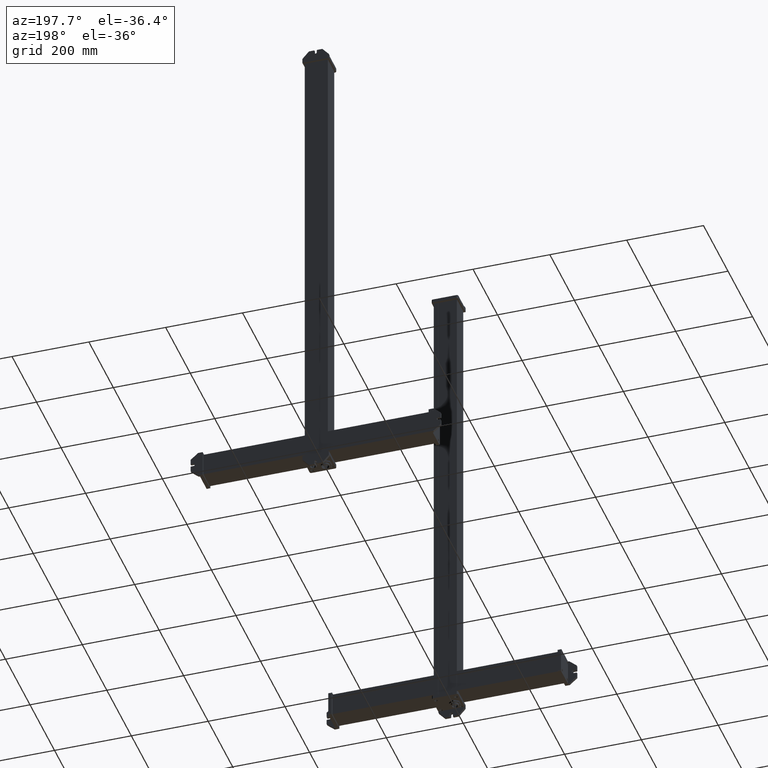
[diagram: clean part render]
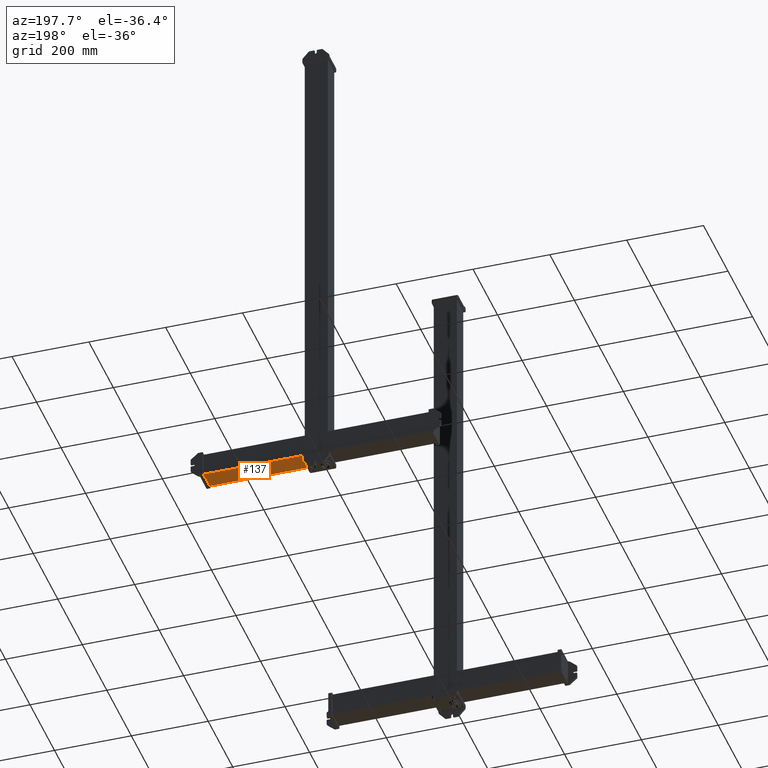
[diagram: same view with one face highlighted and labeled with its STEP entity id]
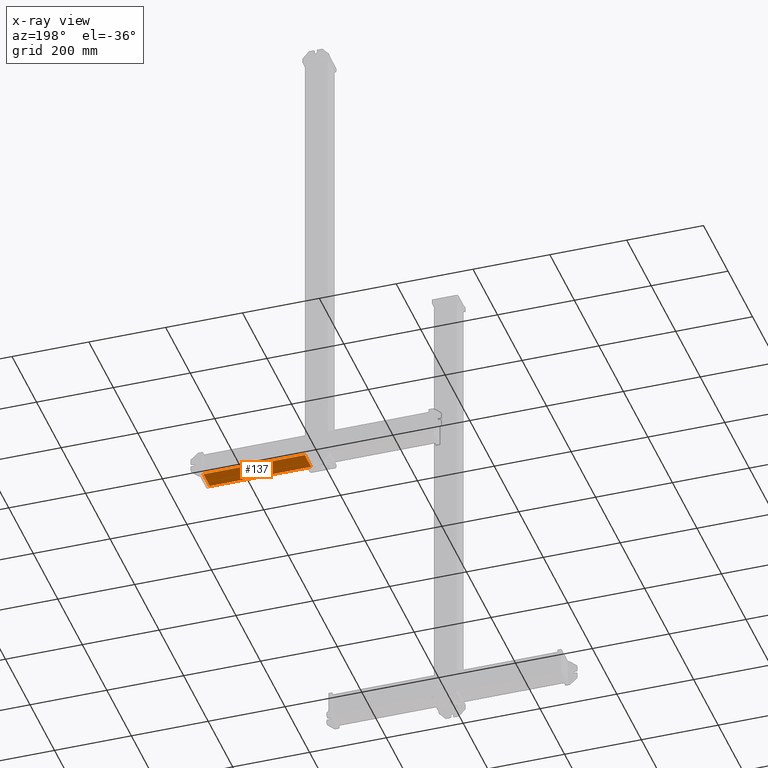
[diagram: x-ray of the same camera — body ghosted, the highlighted face saturated]
A machine part, auxiliary view. The second image highlights one B-rep face of the part: STEP entity #137.
The next image is the same camera in x-ray: the body ghosted, the highlighted face saturated — about 0% of this face is hidden behind the body in this view.
In plain terms, the highlighted planar face has unit normal (0, -0, -1).
Its self-contained STEP definition (entity closure, byte-faithful):
#85=CARTESIAN_POINT('Vertex',(60.,0.,0.)) ;
#88=CARTESIAN_POINT('Line Origine',(60.,0.,132.)) ;
#92=CARTESIAN_POINT('Vertex',(60.,0.,264.)) ;
#107=CARTESIAN_POINT('Axis2P3D Location',(60.,4.1274730146E-015,0.)) ;
#112=CARTESIAN_POINT('Line Origine',(60.,26.,0.)) ;
#116=CARTESIAN_POINT('Vertex',(60.,52.,0.)) ;
#119=CARTESIAN_POINT('Line Origine',(60.,52.,132.)) ;
#123=CARTESIAN_POINT('Vertex',(60.,52.,264.)) ;
#126=CARTESIAN_POINT('Line Origine',(60.,26.,264.)) ;
#89=DIRECTION('Vector Direction',(0.,0.,1.)) ;
#108=DIRECTION('Axis2P3D Direction',(1.,0.,0.)) ;
#109=DIRECTION('Axis2P3D XDirection',(0.,1.,0.)) ;
#113=DIRECTION('Vector Direction',(0.,1.,0.)) ;
#120=DIRECTION('Vector Direction',(0.,0.,1.)) ;
#127=DIRECTION('Vector Direction',(0.,1.,0.)) ;
#110=AXIS2_PLACEMENT_3D('Plane Axis2P3D',#107,#108,#109) ;
#132=ORIENTED_EDGE('',*,*,#94,.F.) ;
#133=ORIENTED_EDGE('',*,*,#118,.T.) ;
#134=ORIENTED_EDGE('',*,*,#125,.T.) ;
#135=ORIENTED_EDGE('',*,*,#130,.F.) ;
#90=VECTOR('Line Direction',#89,1.) ;
#114=VECTOR('Line Direction',#113,1.) ;
#121=VECTOR('Line Direction',#120,1.) ;
#128=VECTOR('Line Direction',#127,1.) ;
#137=ADVANCED_FACE('PartBody',(#136),#111,.T.) ;
#94=EDGE_CURVE('',#86,#93,#91,.T.) ;
#118=EDGE_CURVE('',#86,#117,#115,.T.) ;
#125=EDGE_CURVE('',#117,#124,#122,.T.) ;
#130=EDGE_CURVE('',#93,#124,#129,.T.) ;
#131=EDGE_LOOP('',(#132,#133,#134,#135)) ;
#136=FACE_OUTER_BOUND('',#131,.T.) ;
#91=LINE('Line',#88,#90) ;
#115=LINE('Line',#112,#114) ;
#122=LINE('Line',#119,#121) ;
#129=LINE('Line',#126,#128) ;
#111=PLANE('Plane',#110) ;
#86=VERTEX_POINT('',#85) ;
#93=VERTEX_POINT('',#92) ;
#117=VERTEX_POINT('',#116) ;
#124=VERTEX_POINT('',#123) ;